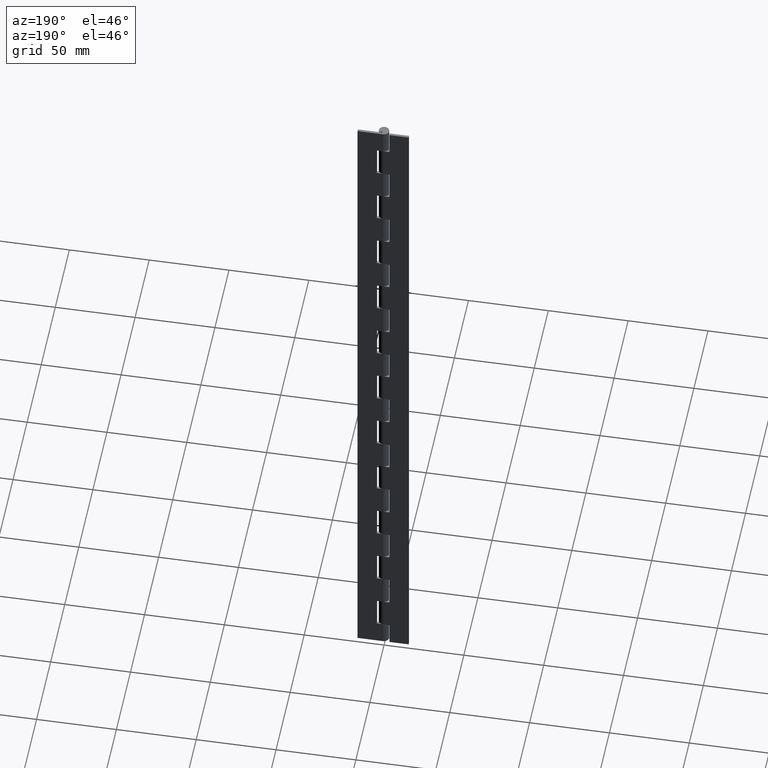
[diagram: clean part render]
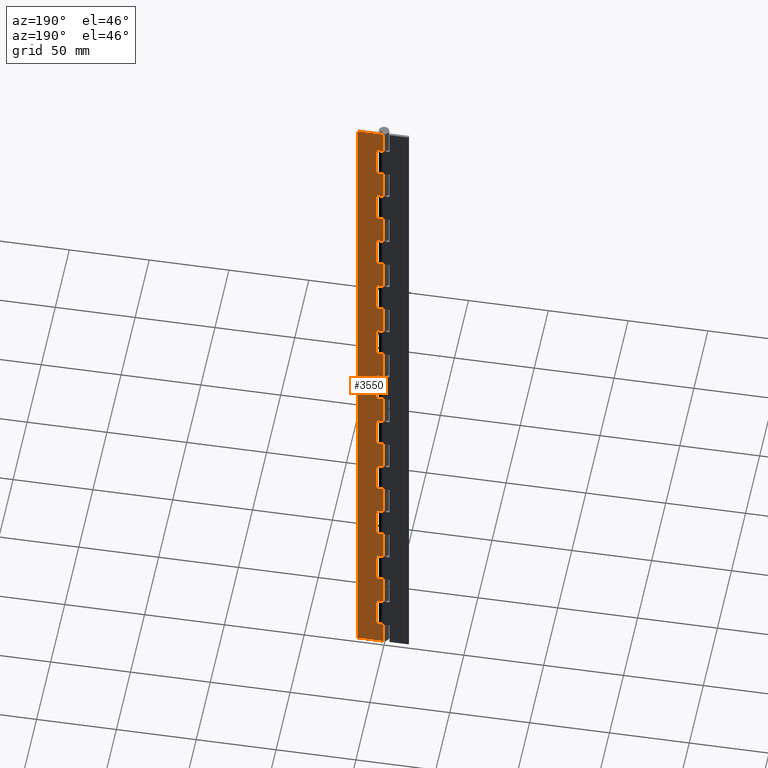
[diagram: same view with one face highlighted and labeled with its STEP entity id]
A machine part, auxiliary view. The second image highlights one B-rep face of the part: STEP entity #3550.
In plain terms, the highlighted face is a freeform B-spline surface patch.
Its self-contained STEP definition (entity closure, byte-faithful):
#330=CARTESIAN_POINT('',(0.0,3.250000000000000,35.000021999999952));
#331=VERTEX_POINT('',#330);
#351=CARTESIAN_POINT('',(4.0,3.250000000000000,35.000021999999952));
#352=VERTEX_POINT('',#351);
#353=CARTESIAN_POINT('',(4.0,3.250000000000000,35.000021999999952));
#354=CARTESIAN_POINT('',(0.0,3.250000000000000,35.000021999999952));
#355=QUASI_UNIFORM_CURVE('',1,(#353,#354),.UNSPECIFIED.,.F.,.U.);
#356=EDGE_CURVE('',#352,#331,#355,.T.);
#379=CARTESIAN_POINT('',(4.0,3.250000000000000,15.000022000000000));
#380=VERTEX_POINT('',#379);
#381=CARTESIAN_POINT('',(4.0,3.250000000000000,15.000022000000000));
#382=CARTESIAN_POINT('',(4.0,3.250000000000000,35.000021999999952));
#383=QUASI_UNIFORM_CURVE('',1,(#381,#382),.UNSPECIFIED.,.F.,.U.);
#384=EDGE_CURVE('',#380,#352,#383,.T.);
#407=CARTESIAN_POINT('',(0.0,3.250000000000000,15.000022000000000));
#408=VERTEX_POINT('',#407);
#409=CARTESIAN_POINT('',(0.0,3.250000000000000,15.000022000000000));
#410=CARTESIAN_POINT('',(4.0,3.250000000000000,15.000022000000000));
#411=QUASI_UNIFORM_CURVE('',1,(#409,#410),.UNSPECIFIED.,.F.,.U.);
#412=EDGE_CURVE('',#408,#380,#411,.T.);
#506=CARTESIAN_POINT('',(0.0,3.250000000000000,75.000022000000001));
#507=VERTEX_POINT('',#506);
#527=CARTESIAN_POINT('',(4.0,3.250000000000000,75.000022000000001));
#528=VERTEX_POINT('',#527);
#529=CARTESIAN_POINT('',(4.0,3.250000000000000,75.000022000000001));
#530=CARTESIAN_POINT('',(0.0,3.250000000000000,75.000022000000001));
#531=QUASI_UNIFORM_CURVE('',1,(#529,#530),.UNSPECIFIED.,.F.,.U.);
#532=EDGE_CURVE('',#528,#507,#531,.T.);
#555=CARTESIAN_POINT('',(4.0,3.250000000000000,55.000022000000001));
#556=VERTEX_POINT('',#555);
#557=CARTESIAN_POINT('',(4.0,3.250000000000000,55.000022000000001));
#558=CARTESIAN_POINT('',(4.0,3.250000000000000,75.000022000000001));
#559=QUASI_UNIFORM_CURVE('',1,(#557,#558),.UNSPECIFIED.,.F.,.U.);
#560=EDGE_CURVE('',#556,#528,#559,.T.);
#583=CARTESIAN_POINT('',(0.0,3.250000000000000,55.000022000000001));
#584=VERTEX_POINT('',#583);
#585=CARTESIAN_POINT('',(0.0,3.250000000000000,55.000022000000001));
#586=CARTESIAN_POINT('',(4.0,3.250000000000000,55.000022000000001));
#587=QUASI_UNIFORM_CURVE('',1,(#585,#586),.UNSPECIFIED.,.F.,.U.);
#588=EDGE_CURVE('',#584,#556,#587,.T.);
#682=CARTESIAN_POINT('',(0.0,3.250000000000000,115.000022000000000));
#683=VERTEX_POINT('',#682);
#703=CARTESIAN_POINT('',(4.0,3.250000000000000,115.000022000000000));
#704=VERTEX_POINT('',#703);
#705=CARTESIAN_POINT('',(4.0,3.250000000000000,115.000022000000000));
#706=CARTESIAN_POINT('',(0.0,3.250000000000000,115.000022000000000));
#707=QUASI_UNIFORM_CURVE('',1,(#705,#706),.UNSPECIFIED.,.F.,.U.);
#708=EDGE_CURVE('',#704,#683,#707,.T.);
#731=CARTESIAN_POINT('',(4.0,3.250000000000000,95.000022000000001));
#732=VERTEX_POINT('',#731);
#733=CARTESIAN_POINT('',(4.0,3.250000000000000,95.000022000000001));
#734=CARTESIAN_POINT('',(4.0,3.250000000000000,115.000022000000000));
#735=QUASI_UNIFORM_CURVE('',1,(#733,#734),.UNSPECIFIED.,.F.,.U.);
#736=EDGE_CURVE('',#732,#704,#735,.T.);
#759=CARTESIAN_POINT('',(0.0,3.250000000000000,95.000022000000001));
#760=VERTEX_POINT('',#759);
#761=CARTESIAN_POINT('',(0.0,3.250000000000000,95.000022000000001));
#762=CARTESIAN_POINT('',(4.0,3.250000000000000,95.000022000000001));
#763=QUASI_UNIFORM_CURVE('',1,(#761,#762),.UNSPECIFIED.,.F.,.U.);
#764=EDGE_CURVE('',#760,#732,#763,.T.);
#858=CARTESIAN_POINT('',(0.0,3.250000000000000,155.000022000000000));
#859=VERTEX_POINT('',#858);
#879=CARTESIAN_POINT('',(4.0,3.250000000000000,155.000022000000000));
#880=VERTEX_POINT('',#879);
#881=CARTESIAN_POINT('',(4.0,3.250000000000000,155.000022000000000));
#882=CARTESIAN_POINT('',(0.0,3.250000000000000,155.000022000000000));
#883=QUASI_UNIFORM_CURVE('',1,(#881,#882),.UNSPECIFIED.,.F.,.U.);
#884=EDGE_CURVE('',#880,#859,#883,.T.);
#907=CARTESIAN_POINT('',(4.0,3.250000000000000,135.000022000000000));
#908=VERTEX_POINT('',#907);
#909=CARTESIAN_POINT('',(4.0,3.250000000000000,135.000022000000000));
#910=CARTESIAN_POINT('',(4.0,3.250000000000000,155.000022000000000));
#911=QUASI_UNIFORM_CURVE('',1,(#909,#910),.UNSPECIFIED.,.F.,.U.);
#912=EDGE_CURVE('',#908,#880,#911,.T.);
#935=CARTESIAN_POINT('',(0.0,3.250000000000000,135.000022000000000));
#936=VERTEX_POINT('',#935);
#937=CARTESIAN_POINT('',(0.0,3.250000000000000,135.000022000000000));
#938=CARTESIAN_POINT('',(4.0,3.250000000000000,135.000022000000000));
#939=QUASI_UNIFORM_CURVE('',1,(#937,#938),.UNSPECIFIED.,.F.,.U.);
#940=EDGE_CURVE('',#936,#908,#939,.T.);
#1034=CARTESIAN_POINT('',(0.0,3.250000000000000,195.000022000000000));
#1035=VERTEX_POINT('',#1034);
#1055=CARTESIAN_POINT('',(4.0,3.250000000000000,195.000022000000000));
#1056=VERTEX_POINT('',#1055);
#1057=CARTESIAN_POINT('',(4.0,3.250000000000000,195.000022000000000));
#1058=CARTESIAN_POINT('',(0.0,3.250000000000000,195.000022000000000));
#1059=QUASI_UNIFORM_CURVE('',1,(#1057,#1058),.UNSPECIFIED.,.F.,.U.);
#1060=EDGE_CURVE('',#1056,#1035,#1059,.T.);
#1083=CARTESIAN_POINT('',(4.0,3.250000000000000,175.000022000000000));
#1084=VERTEX_POINT('',#1083);
#1085=CARTESIAN_POINT('',(4.0,3.250000000000000,175.000022000000000));
#1086=CARTESIAN_POINT('',(4.0,3.250000000000000,195.000022000000000));
#1087=QUASI_UNIFORM_CURVE('',1,(#1085,#1086),.UNSPECIFIED.,.F.,.U.);
#1088=EDGE_CURVE('',#1084,#1056,#1087,.T.);
#1111=CARTESIAN_POINT('',(0.0,3.250000000000000,175.000022000000000));
#1112=VERTEX_POINT('',#1111);
#1113=CARTESIAN_POINT('',(0.0,3.250000000000000,175.000022000000000));
#1114=CARTESIAN_POINT('',(4.0,3.250000000000000,175.000022000000000));
#1115=QUASI_UNIFORM_CURVE('',1,(#1113,#1114),.UNSPECIFIED.,.F.,.U.);
#1116=EDGE_CURVE('',#1112,#1084,#1115,.T.);
#1210=CARTESIAN_POINT('',(0.0,3.250000000000000,235.000022000000000));
#1211=VERTEX_POINT('',#1210);
#1231=CARTESIAN_POINT('',(4.0,3.250000000000000,235.000022000000000));
#1232=VERTEX_POINT('',#1231);
#1233=CARTESIAN_POINT('',(4.0,3.250000000000000,235.000022000000000));
#1234=CARTESIAN_POINT('',(0.0,3.250000000000000,235.000022000000000));
#1235=QUASI_UNIFORM_CURVE('',1,(#1233,#1234),.UNSPECIFIED.,.F.,.U.);
#1236=EDGE_CURVE('',#1232,#1211,#1235,.T.);
#1259=CARTESIAN_POINT('',(4.0,3.250000000000000,215.000022000000000));
#1260=VERTEX_POINT('',#1259);
#1261=CARTESIAN_POINT('',(4.0,3.250000000000000,215.000022000000000));
#1262=CARTESIAN_POINT('',(4.0,3.250000000000000,235.000022000000000));
#1263=QUASI_UNIFORM_CURVE('',1,(#1261,#1262),.UNSPECIFIED.,.F.,.U.);
#1264=EDGE_CURVE('',#1260,#1232,#1263,.T.);
#1287=CARTESIAN_POINT('',(0.0,3.250000000000000,215.000022000000000));
#1288=VERTEX_POINT('',#1287);
#1289=CARTESIAN_POINT('',(0.0,3.250000000000000,215.000022000000000));
#1290=CARTESIAN_POINT('',(4.0,3.250000000000000,215.000022000000000));
#1291=QUASI_UNIFORM_CURVE('',1,(#1289,#1290),.UNSPECIFIED.,.F.,.U.);
#1292=EDGE_CURVE('',#1288,#1260,#1291,.T.);
#1386=CARTESIAN_POINT('',(0.0,3.250000000000000,275.000022000000000));
#1387=VERTEX_POINT('',#1386);
#1407=CARTESIAN_POINT('',(4.0,3.250000000000000,275.000022000000000));
#1408=VERTEX_POINT('',#1407);
#1409=CARTESIAN_POINT('',(4.0,3.250000000000000,275.000022000000000));
#1410=CARTESIAN_POINT('',(0.0,3.250000000000000,275.000022000000000));
#1411=QUASI_UNIFORM_CURVE('',1,(#1409,#1410),.UNSPECIFIED.,.F.,.U.);
#1412=EDGE_CURVE('',#1408,#1387,#1411,.T.);
#1435=CARTESIAN_POINT('',(4.0,3.250000000000000,255.000022000000000));
#1436=VERTEX_POINT('',#1435);
#1437=CARTESIAN_POINT('',(4.0,3.250000000000000,255.000022000000000));
#1438=CARTESIAN_POINT('',(4.0,3.250000000000000,275.000022000000000));
#1439=QUASI_UNIFORM_CURVE('',1,(#1437,#1438),.UNSPECIFIED.,.F.,.U.);
#1440=EDGE_CURVE('',#1436,#1408,#1439,.T.);
#1463=CARTESIAN_POINT('',(0.0,3.250000000000000,255.000022000000000));
#1464=VERTEX_POINT('',#1463);
#1465=CARTESIAN_POINT('',(0.0,3.250000000000000,255.000022000000000));
#1466=CARTESIAN_POINT('',(4.0,3.250000000000000,255.000022000000000));
#1467=QUASI_UNIFORM_CURVE('',1,(#1465,#1466),.UNSPECIFIED.,.F.,.U.);
#1468=EDGE_CURVE('',#1464,#1436,#1467,.T.);
#1562=CARTESIAN_POINT('',(0.0,3.250000000000000,315.000022000000000));
#1563=VERTEX_POINT('',#1562);
#1583=CARTESIAN_POINT('',(4.0,3.250000000000000,315.000022000000000));
#1584=VERTEX_POINT('',#1583);
#1585=CARTESIAN_POINT('',(4.0,3.250000000000000,315.000022000000000));
#1586=CARTESIAN_POINT('',(0.0,3.250000000000000,315.000022000000000));
#1587=QUASI_UNIFORM_CURVE('',1,(#1585,#1586),.UNSPECIFIED.,.F.,.U.);
#1588=EDGE_CURVE('',#1584,#1563,#1587,.T.);
#1611=CARTESIAN_POINT('',(4.0,3.250000000000000,295.000021999999890));
#1612=VERTEX_POINT('',#1611);
#1613=CARTESIAN_POINT('',(4.0,3.250000000000000,295.000021999999890));
#1614=CARTESIAN_POINT('',(4.0,3.250000000000000,315.000022000000000));
#1615=QUASI_UNIFORM_CURVE('',1,(#1613,#1614),.UNSPECIFIED.,.F.,.U.);
#1616=EDGE_CURVE('',#1612,#1584,#1615,.T.);
#1639=CARTESIAN_POINT('',(0.0,3.250000000000000,295.000021999999890));
#1640=VERTEX_POINT('',#1639);
#1641=CARTESIAN_POINT('',(0.0,3.250000000000000,295.000021999999890));
#1642=CARTESIAN_POINT('',(4.0,3.250000000000000,295.000021999999890));
#1643=QUASI_UNIFORM_CURVE('',1,(#1641,#1642),.UNSPECIFIED.,.F.,.U.);
#1644=EDGE_CURVE('',#1640,#1612,#1643,.T.);
#1738=CARTESIAN_POINT('',(0.0,3.250000000000000,355.000022000000000));
#1739=VERTEX_POINT('',#1738);
#1759=CARTESIAN_POINT('',(4.0,3.250000000000000,355.000022000000000));
#1760=VERTEX_POINT('',#1759);
#1761=CARTESIAN_POINT('',(4.0,3.250000000000000,355.000022000000000));
#1762=CARTESIAN_POINT('',(0.0,3.250000000000000,355.000022000000000));
#1763=QUASI_UNIFORM_CURVE('',1,(#1761,#1762),.UNSPECIFIED.,.F.,.U.);
#1764=EDGE_CURVE('',#1760,#1739,#1763,.T.);
#1787=CARTESIAN_POINT('',(4.0,3.250000000000000,335.000022000000000));
#1788=VERTEX_POINT('',#1787);
#1789=CARTESIAN_POINT('',(4.0,3.250000000000000,335.000022000000000));
#1790=CARTESIAN_POINT('',(4.0,3.250000000000000,355.000022000000000));
#1791=QUASI_UNIFORM_CURVE('',1,(#1789,#1790),.UNSPECIFIED.,.F.,.U.);
#1792=EDGE_CURVE('',#1788,#1760,#1791,.T.);
#1815=CARTESIAN_POINT('',(0.0,3.250000000000000,335.000022000000000));
#1816=VERTEX_POINT('',#1815);
#1817=CARTESIAN_POINT('',(0.0,3.250000000000000,335.000022000000000));
#1818=CARTESIAN_POINT('',(4.0,3.250000000000000,335.000022000000000));
#1819=QUASI_UNIFORM_CURVE('',1,(#1817,#1818),.UNSPECIFIED.,.F.,.U.);
#1820=EDGE_CURVE('',#1816,#1788,#1819,.T.);
#1914=CARTESIAN_POINT('',(0.0,3.250000000000000,395.000022000000000));
#1915=VERTEX_POINT('',#1914);
#1935=CARTESIAN_POINT('',(4.0,3.250000000000000,395.000022000000000));
#1936=VERTEX_POINT('',#1935);
#1937=CARTESIAN_POINT('',(4.0,3.250000000000000,395.000022000000000));
#1938=CARTESIAN_POINT('',(0.0,3.250000000000000,395.000022000000000));
#1939=QUASI_UNIFORM_CURVE('',1,(#1937,#1938),.UNSPECIFIED.,.F.,.U.);
#1940=EDGE_CURVE('',#1936,#1915,#1939,.T.);
#1963=CARTESIAN_POINT('',(4.0,3.250000000000000,375.000022000000000));
#1964=VERTEX_POINT('',#1963);
#1965=CARTESIAN_POINT('',(4.0,3.250000000000000,375.000022000000000));
#1966=CARTESIAN_POINT('',(4.0,3.250000000000000,395.000022000000000));
#1967=QUASI_UNIFORM_CURVE('',1,(#1965,#1966),.UNSPECIFIED.,.F.,.U.);
#1968=EDGE_CURVE('',#1964,#1936,#1967,.T.);
#1991=CARTESIAN_POINT('',(0.0,3.250000000000000,375.000022000000000));
#1992=VERTEX_POINT('',#1991);
#1993=CARTESIAN_POINT('',(0.0,3.250000000000000,375.000022000000000));
#1994=CARTESIAN_POINT('',(4.0,3.250000000000000,375.000022000000000));
#1995=QUASI_UNIFORM_CURVE('',1,(#1993,#1994),.UNSPECIFIED.,.F.,.U.);
#1996=EDGE_CURVE('',#1992,#1964,#1995,.T.);
#2090=CARTESIAN_POINT('',(0.0,3.250000000000000,435.000022000000000));
#2091=VERTEX_POINT('',#2090);
#2111=CARTESIAN_POINT('',(4.0,3.250000000000000,435.000022000000000));
#2112=VERTEX_POINT('',#2111);
#2113=CARTESIAN_POINT('',(4.0,3.250000000000000,435.000022000000000));
#2114=CARTESIAN_POINT('',(0.0,3.250000000000000,435.000022000000000));
#2115=QUASI_UNIFORM_CURVE('',1,(#2113,#2114),.UNSPECIFIED.,.F.,.U.);
#2116=EDGE_CURVE('',#2112,#2091,#2115,.T.);
#2139=CARTESIAN_POINT('',(4.0,3.250000000000000,415.000022000000000));
#2140=VERTEX_POINT('',#2139);
#2141=CARTESIAN_POINT('',(4.0,3.250000000000000,415.000022000000000));
#2142=CARTESIAN_POINT('',(4.0,3.250000000000000,435.000022000000000));
#2143=QUASI_UNIFORM_CURVE('',1,(#2141,#2142),.UNSPECIFIED.,.F.,.U.);
#2144=EDGE_CURVE('',#2140,#2112,#2143,.T.);
#2167=CARTESIAN_POINT('',(0.0,3.250000000000000,415.000022000000000));
#2168=VERTEX_POINT('',#2167);
#2169=CARTESIAN_POINT('',(0.0,3.250000000000000,415.000022000000000));
#2170=CARTESIAN_POINT('',(4.0,3.250000000000000,415.000022000000000));
#2171=QUASI_UNIFORM_CURVE('',1,(#2169,#2170),.UNSPECIFIED.,.F.,.U.);
#2172=EDGE_CURVE('',#2168,#2140,#2171,.T.);
#2236=CARTESIAN_POINT('',(-5.969956E-016,3.250000000000000,0.0));
#2237=VERTEX_POINT('',#2236);
#2238=CARTESIAN_POINT('',(16.0,3.250000000000000,0.0));
#2239=VERTEX_POINT('',#2238);
#2240=CARTESIAN_POINT('',(-5.969956E-016,3.250000000000000,0.0));
#2241=CARTESIAN_POINT('',(16.0,3.250000000000000,0.0));
#2242=QUASI_UNIFORM_CURVE('',1,(#2240,#2241),.UNSPECIFIED.,.F.,.U.);
#2243=EDGE_CURVE('',#2237,#2239,#2242,.T.);
#2314=CARTESIAN_POINT('',(-5.969956E-016,3.250000000000000,450.000022000000000));
#2315=VERTEX_POINT('',#2314);
#2316=CARTESIAN_POINT('',(16.0,3.250000000000000,450.000022000000000));
#2317=VERTEX_POINT('',#2316);
#2318=CARTESIAN_POINT('',(-5.969956E-016,3.250000000000000,450.000022000000000));
#2319=CARTESIAN_POINT('',(16.0,3.250000000000000,450.000022000000000));
#2320=QUASI_UNIFORM_CURVE('',1,(#2318,#2319),.UNSPECIFIED.,.F.,.U.);
#2321=EDGE_CURVE('',#2315,#2317,#2320,.T.);
#2393=CARTESIAN_POINT('',(16.0,3.250000000000000,450.000022000000000));
#2394=CARTESIAN_POINT('',(16.0,3.250000000000000,0.0));
#2395=QUASI_UNIFORM_CURVE('',1,(#2393,#2394),.UNSPECIFIED.,.F.,.U.);
#2396=EDGE_CURVE('',#2317,#2239,#2395,.T.);
#2436=CARTESIAN_POINT('',(-5.969956E-016,3.250000000000000,450.000022000000000));
#2437=CARTESIAN_POINT('',(0.0,3.250000000000000,435.000022000000000));
#2438=QUASI_UNIFORM_CURVE('',1,(#2436,#2437),.UNSPECIFIED.,.F.,.U.);
#2439=EDGE_CURVE('',#2315,#2091,#2438,.T.);
#2522=CARTESIAN_POINT('',(0.0,3.250000000000000,415.000022000000000));
#2523=CARTESIAN_POINT('',(0.0,3.250000000000000,395.000022000000000));
#2524=QUASI_UNIFORM_CURVE('',1,(#2522,#2523),.UNSPECIFIED.,.F.,.U.);
#2525=EDGE_CURVE('',#2168,#1915,#2524,.T.);
#2608=CARTESIAN_POINT('',(0.0,3.250000000000000,375.000022000000000));
#2609=CARTESIAN_POINT('',(0.0,3.250000000000000,355.000022000000000));
#2610=QUASI_UNIFORM_CURVE('',1,(#2608,#2609),.UNSPECIFIED.,.F.,.U.);
#2611=EDGE_CURVE('',#1992,#1739,#2610,.T.);
#2694=CARTESIAN_POINT('',(0.0,3.250000000000000,335.000022000000000));
#2695=CARTESIAN_POINT('',(0.0,3.250000000000000,315.000022000000000));
#2696=QUASI_UNIFORM_CURVE('',1,(#2694,#2695),.UNSPECIFIED.,.F.,.U.);
#2697=EDGE_CURVE('',#1816,#1563,#2696,.T.);
#2780=CARTESIAN_POINT('',(0.0,3.250000000000000,295.000021999999890));
#2781=CARTESIAN_POINT('',(0.0,3.250000000000000,275.000022000000000));
#2782=QUASI_UNIFORM_CURVE('',1,(#2780,#2781),.UNSPECIFIED.,.F.,.U.);
#2783=EDGE_CURVE('',#1640,#1387,#2782,.T.);
#2866=CARTESIAN_POINT('',(0.0,3.250000000000000,255.000022000000000));
#2867=CARTESIAN_POINT('',(0.0,3.250000000000000,235.000022000000000));
#2868=QUASI_UNIFORM_CURVE('',1,(#2866,#2867),.UNSPECIFIED.,.F.,.U.);
#2869=EDGE_CURVE('',#1464,#1211,#2868,.T.);
#2952=CARTESIAN_POINT('',(0.0,3.250000000000000,215.000022000000000));
#2953=CARTESIAN_POINT('',(0.0,3.250000000000000,195.000022000000000));
#2954=QUASI_UNIFORM_CURVE('',1,(#2952,#2953),.UNSPECIFIED.,.F.,.U.);
#2955=EDGE_CURVE('',#1288,#1035,#2954,.T.);
#3038=CARTESIAN_POINT('',(0.0,3.250000000000000,175.000022000000000));
#3039=CARTESIAN_POINT('',(0.0,3.250000000000000,155.000022000000000));
#3040=QUASI_UNIFORM_CURVE('',1,(#3038,#3039),.UNSPECIFIED.,.F.,.U.);
#3041=EDGE_CURVE('',#1112,#859,#3040,.T.);
#3124=CARTESIAN_POINT('',(0.0,3.250000000000000,135.000022000000000));
#3125=CARTESIAN_POINT('',(0.0,3.250000000000000,115.000022000000000));
#3126=QUASI_UNIFORM_CURVE('',1,(#3124,#3125),.UNSPECIFIED.,.F.,.U.);
#3127=EDGE_CURVE('',#936,#683,#3126,.T.);
#3210=CARTESIAN_POINT('',(0.0,3.250000000000000,95.000022000000001));
#3211=CARTESIAN_POINT('',(0.0,3.250000000000000,75.000022000000001));
#3212=QUASI_UNIFORM_CURVE('',1,(#3210,#3211),.UNSPECIFIED.,.F.,.U.);
#3213=EDGE_CURVE('',#760,#507,#3212,.T.);
#3296=CARTESIAN_POINT('',(0.0,3.250000000000000,55.000022000000001));
#3297=CARTESIAN_POINT('',(0.0,3.250000000000000,35.000021999999952));
#3298=QUASI_UNIFORM_CURVE('',1,(#3296,#3297),.UNSPECIFIED.,.F.,.U.);
#3299=EDGE_CURVE('',#584,#331,#3298,.T.);
#3327=CARTESIAN_POINT('',(0.0,3.250000000000000,15.000022000000000));
#3328=CARTESIAN_POINT('',(-5.969956E-016,3.250000000000000,0.0));
#3329=QUASI_UNIFORM_CURVE('',1,(#3327,#3328),.UNSPECIFIED.,.F.,.U.);
#3330=EDGE_CURVE('',#408,#2237,#3329,.T.);
#3495=CARTESIAN_POINT('',(-0.799199968988895,3.250000000000000,-22.477500226712660));
#3496=CARTESIAN_POINT('',(-0.799199968988895,3.250000000000000,472.477534296653910));
#3497=CARTESIAN_POINT('',(16.799200398142339,3.250000000000000,-22.477500226712660));
#3498=CARTESIAN_POINT('',(16.799200398142339,3.250000000000000,472.477534296653910));
#3499=B_SPLINE_SURFACE_WITH_KNOTS('',1,1,((#3495,#3497),(#3496,#3498)),.UNSPECIFIED.,.F.,.F.,.U.,(2,2),(2,2),(0.0,494.955034523366520),(0.0,17.598400367131230),.UNSPECIFIED.);
#3500=ORIENTED_EDGE('',*,*,#3330,.F.);
#3501=ORIENTED_EDGE('',*,*,#412,.T.);
#3502=ORIENTED_EDGE('',*,*,#384,.T.);
#3503=ORIENTED_EDGE('',*,*,#356,.T.);
#3504=ORIENTED_EDGE('',*,*,#3299,.F.);
#3505=ORIENTED_EDGE('',*,*,#588,.T.);
#3506=ORIENTED_EDGE('',*,*,#560,.T.);
#3507=ORIENTED_EDGE('',*,*,#532,.T.);
#3508=ORIENTED_EDGE('',*,*,#3213,.F.);
#3509=ORIENTED_EDGE('',*,*,#764,.T.);
#3510=ORIENTED_EDGE('',*,*,#736,.T.);
#3511=ORIENTED_EDGE('',*,*,#708,.T.);
#3512=ORIENTED_EDGE('',*,*,#3127,.F.);
#3513=ORIENTED_EDGE('',*,*,#940,.T.);
#3514=ORIENTED_EDGE('',*,*,#912,.T.);
#3515=ORIENTED_EDGE('',*,*,#884,.T.);
#3516=ORIENTED_EDGE('',*,*,#3041,.F.);
#3517=ORIENTED_EDGE('',*,*,#1116,.T.);
#3518=ORIENTED_EDGE('',*,*,#1088,.T.);
#3519=ORIENTED_EDGE('',*,*,#1060,.T.);
#3520=ORIENTED_EDGE('',*,*,#2955,.F.);
#3521=ORIENTED_EDGE('',*,*,#1292,.T.);
#3522=ORIENTED_EDGE('',*,*,#1264,.T.);
#3523=ORIENTED_EDGE('',*,*,#1236,.T.);
#3524=ORIENTED_EDGE('',*,*,#2869,.F.);
#3525=ORIENTED_EDGE('',*,*,#1468,.T.);
#3526=ORIENTED_EDGE('',*,*,#1440,.T.);
#3527=ORIENTED_EDGE('',*,*,#1412,.T.);
#3528=ORIENTED_EDGE('',*,*,#2783,.F.);
#3529=ORIENTED_EDGE('',*,*,#1644,.T.);
#3530=ORIENTED_EDGE('',*,*,#1616,.T.);
#3531=ORIENTED_EDGE('',*,*,#1588,.T.);
#3532=ORIENTED_EDGE('',*,*,#2697,.F.);
#3533=ORIENTED_EDGE('',*,*,#1820,.T.);
#3534=ORIENTED_EDGE('',*,*,#1792,.T.);
#3535=ORIENTED_EDGE('',*,*,#1764,.T.);
#3536=ORIENTED_EDGE('',*,*,#2611,.F.);
#3537=ORIENTED_EDGE('',*,*,#1996,.T.);
#3538=ORIENTED_EDGE('',*,*,#1968,.T.);
#3539=ORIENTED_EDGE('',*,*,#1940,.T.);
#3540=ORIENTED_EDGE('',*,*,#2525,.F.);
#3541=ORIENTED_EDGE('',*,*,#2172,.T.);
#3542=ORIENTED_EDGE('',*,*,#2144,.T.);
#3543=ORIENTED_EDGE('',*,*,#2116,.T.);
#3544=ORIENTED_EDGE('',*,*,#2439,.F.);
#3545=ORIENTED_EDGE('',*,*,#2321,.T.);
#3546=ORIENTED_EDGE('',*,*,#2396,.T.);
#3547=ORIENTED_EDGE('',*,*,#2243,.F.);
#3548=EDGE_LOOP('',(#3500,#3501,#3502,#3503,#3504,#3505,#3506,#3507,#3508,#3509,#3510,#3511,#3512,#3513,#3514,#3515,#3516,#3517,#3518,#3519,#3520,#3521,#3522,#3523,#3524,#3525,#3526,#3527,#3528,#3529,#3530,#3531,#3532,#3533,#3534,#3535,#3536,#3537,#3538,#3539,#3540,#3541,#3542,#3543,#3544,#3545,#3546,#3547));
#3549=FACE_OUTER_BOUND('',#3548,.T.);
#3550=ADVANCED_FACE('',(#3549),#3499,.T.);